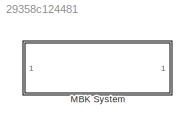
MODEL slx_29358c124481
KIND model
CONFIG AbsTol = auto
CONFIG EnableMultiTasking = off
CONFIG FixedStep = 0.01
CONFIG InitFcn = %% Initial Condition\nm = 10;\nb = 2;\nk = 5;
CONFIG MaxStep = auto
CONFIG MinStep = auto
CONFIG RelTol = 1e-3
CONFIG SampleTimeConstraint = Unconstrained
CONFIG SolverName = ode4
CONFIG StartTime = 0.0
CONFIG StopTime = 20
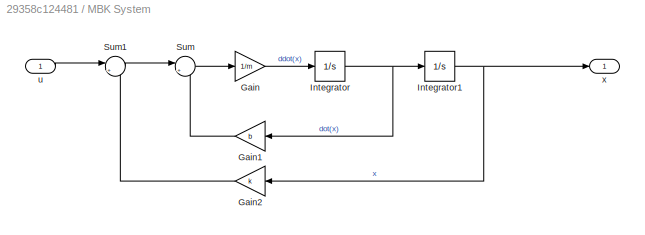
BLOCK [SubSystem] MBK System
BLOCK [Gain] MBK System/Gain
  Gain = 1/m
BLOCK [Gain] MBK System/Gain1
  Gain = b
  NameLocation = top
BLOCK [Gain] MBK System/Gain2
  Gain = k
  NameLocation = top
BLOCK [Integrator] MBK System/Integrator
BLOCK [Integrator] MBK System/Integrator1
  InitialCondition = -1.519
BLOCK [Sum] MBK System/Sum
  Inputs = |+-
BLOCK [Sum] MBK System/Sum1
  Inputs = |+-
BLOCK [Inport] MBK System/u
BLOCK [Outport] MBK System/x
LINE MBK System/Gain1:1 -> MBK System/Sum:2
LINE MBK System/Gain2:1 -> MBK System/Sum1:2
LINE MBK System/Gain:1 -> MBK System/Integrator:1
NET MBK System/Integrator1:1 -> MBK System/Gain2:1, MBK System/x:1
NET MBK System/Integrator:1 -> MBK System/Gain1:1, MBK System/Integrator1:1
LINE MBK System/Sum1:1 -> MBK System/Sum:1
LINE MBK System/Sum:1 -> MBK System/Gain:1
LINE MBK System/u:1 -> MBK System/Sum1:1
note: NET lines group one-source signal fan-out (src -> all destinations, sorted); 1:1 wires keep LINE
